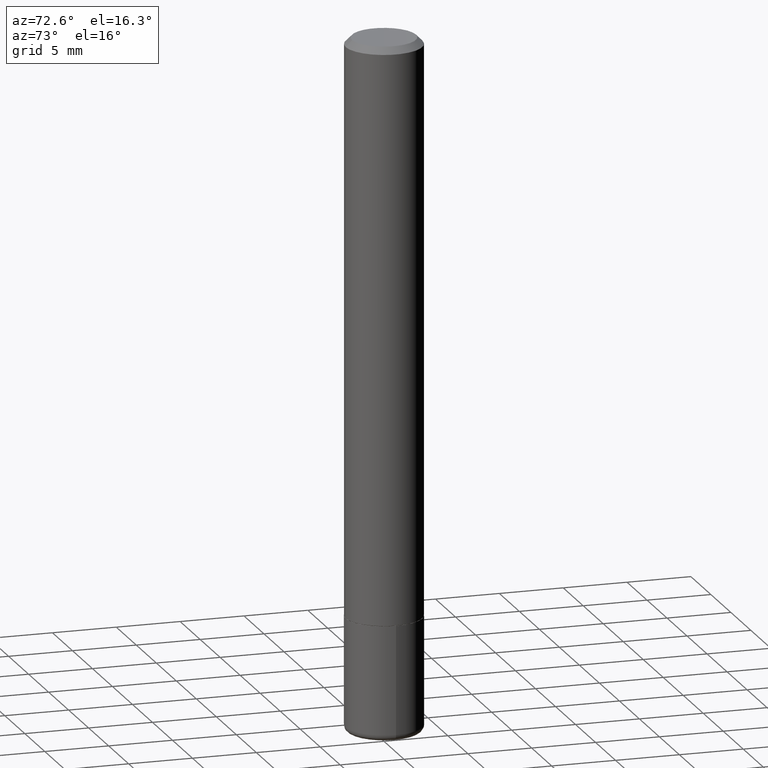
[diagram: clean part render]
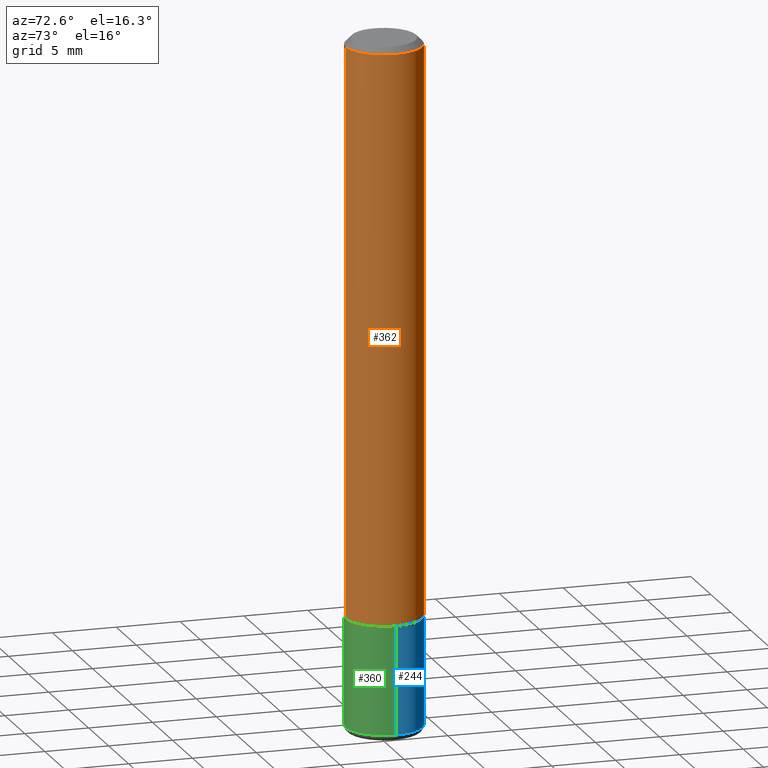
[diagram: same view with three faces highlighted in distinct colors, each labeled with its STEP entity id]
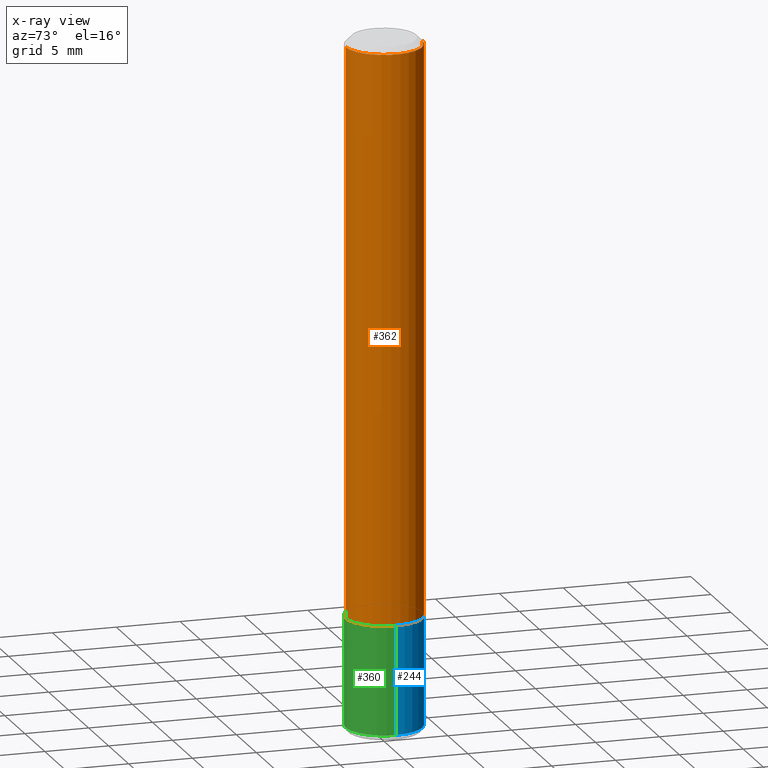
[diagram: x-ray of the same camera — body ghosted, the three highlighted faces saturated]
A machine part, auxiliary view with three faces highlighted in distinct colors.
The next image is the same camera in x-ray (body ghosted, the three faces saturated) — at least one of them is partly hidden behind the body in this view.
Their STEP definitions:

[orange] entity #362 — the highlighted cylindrical surface (partial cylindrical patch) has radius 2.9997 mm, axis along (-0, 0, 1).
#12 = CARTESIAN_POINT ( 'NONE',  ( -8.246878922347489529E-16, -0.1181000000000001354, 4.133363577972476627E-16 ) ) ;
#18 = DIRECTION ( 'NONE',  ( -6.982962677686265922E-15, -1.000000000000000000, 3.499884486005480105E-15 ) ) ;
#30 = ORIENTED_EDGE ( 'NONE', *, *, #162, .T. ) ;
#33 = DIRECTION ( 'NONE',  ( -2.439600919884167677E-29, 3.499884486005479711E-15, 1.000000000000000000 ) ) ;
#39 = AXIS2_PLACEMENT_3D ( 'NONE', #361, #163, #103 ) ;
#62 = EDGE_CURVE ( 'NONE', #219, #289, #125, .T. ) ;
#65 = AXIS2_PLACEMENT_3D ( 'NONE', #200, #269, #327 ) ;
#68 = CARTESIAN_POINT ( 'NONE',  ( 8.391509709327015671E-16, 0.1180999999999940708, -1.770700000000000385 ) ) ;
#87 = ORIENTED_EDGE ( 'NONE', *, *, #167, .F. ) ;
#103 = DIRECTION ( 'NONE',  ( -6.982962677686265922E-15, -1.000000000000000000, 3.505890868245044514E-15 ) ) ;
#117 = EDGE_CURVE ( 'NONE', #251, #180, #332, .T. ) ;
#125 = LINE ( 'NONE', #259, #412 ) ;
#153 = CARTESIAN_POINT ( 'NONE',  ( -8.246878922347066502E-16, -0.1181000000000064498, -1.770699999999999275 ) ) ;
#162 = EDGE_CURVE ( 'NONE', #251, #219, #381, .T. ) ;
#163 = DIRECTION ( 'NONE',  ( -2.439600919884167677E-29, 3.499884486005480105E-15, 1.000000000000000000 ) ) ;
#167 = EDGE_CURVE ( 'NONE', #180, #289, #343, .T. ) ;
#175 = CARTESIAN_POINT ( 'NONE',  ( 0.000000000000000000, 0.000000000000000000, 0.000000000000000000 ) ) ;
#176 = AXIS2_PLACEMENT_3D ( 'NONE', #175, #312, #18 ) ;
#179 = FACE_OUTER_BOUND ( 'NONE', #354, .T. ) ;
#180 = VERTEX_POINT ( 'NONE', #299 ) ;
#184 = ORIENTED_EDGE ( 'NONE', *, *, #117, .F. ) ;
#186 = VECTOR ( 'NONE', #33, 39.37007874015748143 ) ;
#190 = DIRECTION ( 'NONE',  ( -2.439600919884167677E-29, 3.499884486005479711E-15, 1.000000000000000000 ) ) ;
#196 = ORIENTED_EDGE ( 'NONE', *, *, #62, .T. ) ;
#200 = CARTESIAN_POINT ( 'NONE',  ( 4.319801348838895130E-29, -6.197245459369903172E-15, -1.770699999999999719 ) ) ;
#219 = VERTEX_POINT ( 'NONE', #68 ) ;
#251 = VERTEX_POINT ( 'NONE', #153 ) ;
#259 = CARTESIAN_POINT ( 'NONE',  ( 8.391509709326791832E-16, 0.1181000000000001354, -4.133363577972476627E-16 ) ) ;
#269 = DIRECTION ( 'NONE',  ( -2.439600919884167677E-29, 3.499884486005480105E-15, 1.000000000000000000 ) ) ;
#280 = CARTESIAN_POINT ( 'NONE',  ( 8.246878922347486570E-16, 0.1180999999999999689, -0.02000000000000047920 ) ) ;
#289 = VERTEX_POINT ( 'NONE', #280 ) ;
#299 = CARTESIAN_POINT ( 'NONE',  ( -8.102248135368175393E-16, -0.1181000000000001077, -0.01999999999999965000 ) ) ;
#312 = DIRECTION ( 'NONE',  ( -2.439600919884167677E-29, 3.499884486005480105E-15, 1.000000000000000000 ) ) ;
#327 = DIRECTION ( 'NONE',  ( -6.982962677686265133E-15, -1.000000000000000000, 4.626330217890359081E-15 ) ) ;
#332 = LINE ( 'NONE', #12, #186 ) ;
#340 = CYLINDRICAL_SURFACE ( 'NONE', #176, 0.1181000000000001354 ) ;
#343 = CIRCLE ( 'NONE', #39, 0.1181000000000000383 ) ;
#354 = EDGE_LOOP ( 'NONE', ( #30, #196, #87, #184 ) ) ;
#361 = CARTESIAN_POINT ( 'NONE',  ( 4.879201839768351154E-31, -6.999768972010982150E-17, -0.02000000000000006287 ) ) ;
#362 = ADVANCED_FACE ( 'NONE', ( #179 ), #340, .T. ) ;
#381 = CIRCLE ( 'NONE', #65, 0.1181000000000002603 ) ;
#412 = VECTOR ( 'NONE', #190, 39.37007874015748143 ) ;

[blue] entity #244 — the highlighted cylindrical surface (partial cylindrical patch) has radius 2.9997 mm, axis along (-0, 0, 1).
#4 = LINE ( 'NONE', #393, #113 ) ;
#8 = DIRECTION ( 'NONE',  ( -2.445468806185136877E-29, 3.491481338843145188E-15, 1.000000000000000000 ) ) ;
#25 = ORIENTED_EDGE ( 'NONE', *, *, #335, .F. ) ;
#34 = EDGE_CURVE ( 'NONE', #261, #195, #296, .T. ) ;
#41 = CYLINDRICAL_SURFACE ( 'NONE', #133, 0.1181000000000000383 ) ;
#50 = CARTESIAN_POINT ( 'NONE',  ( -0.1180999999999999689, -6.514956173072637249E-15, -2.106299999999999617 ) ) ;
#64 = VERTEX_POINT ( 'NONE', #384 ) ;
#72 = AXIS2_PLACEMENT_3D ( 'NONE', #387, #157, #294 ) ;
#77 = EDGE_CURVE ( 'NONE', #64, #372, #342, .T. ) ;
#80 = CARTESIAN_POINT ( 'NONE',  ( 0.000000000000000000, 0.000000000000000000, 0.000000000000000000 ) ) ;
#92 = EDGE_CURVE ( 'NONE', #372, #195, #4, .T. ) ;
#99 = CARTESIAN_POINT ( 'NONE',  ( 5.150890946467751892E-29, -7.354107144005315446E-15, -2.106299999999999617 ) ) ;
#113 = VECTOR ( 'NONE', #8, 39.37007874015748143 ) ;
#133 = AXIS2_PLACEMENT_3D ( 'NONE', #80, #211, #249 ) ;
#149 = CARTESIAN_POINT ( 'NONE',  ( 0.1181000000000000383, -7.010545380263147766E-15, -1.771699999999999831 ) ) ;
#157 = DIRECTION ( 'NONE',  ( -2.445468806185136597E-29, 3.491481338843145583E-15, 1.000000000000000000 ) ) ;
#165 = CARTESIAN_POINT ( 'NONE',  ( -0.1181000000000000383, -5.930831345084179278E-15, -1.771699999999999831 ) ) ;
#195 = VERTEX_POINT ( 'NONE', #165 ) ;
#198 = EDGE_LOOP ( 'NONE', ( #383, #315, #225, #25 ) ) ;
#206 = FACE_OUTER_BOUND ( 'NONE', #198, .T. ) ;
#211 = DIRECTION ( 'NONE',  ( -2.445468806185136597E-29, 3.491481338843145583E-15, 1.000000000000000000 ) ) ;
#225 = ORIENTED_EDGE ( 'NONE', *, *, #34, .F. ) ;
#226 = DIRECTION ( 'NONE',  ( -2.445468806185136597E-29, 3.491481338843145583E-15, 1.000000000000000000 ) ) ;
#244 = ADVANCED_FACE ( 'NONE', ( #206 ), #41, .T. ) ;
#248 = VECTOR ( 'NONE', #344, 39.37007874015748143 ) ;
#249 = DIRECTION ( 'NONE',  ( 1.000000000000000000, -6.982962677686266711E-15, 4.876176775795935793E-29 ) ) ;
#261 = VERTEX_POINT ( 'NONE', #149 ) ;
#277 = LINE ( 'NONE', #279, #248 ) ;
#279 = CARTESIAN_POINT ( 'NONE',  ( 0.1181000000000000383, -8.246878922347483612E-16, 5.758764772215001842E-30 ) ) ;
#294 = DIRECTION ( 'NONE',  ( 1.000000000000000000, -6.982962677686262766E-15, 0.000000000000000000 ) ) ;
#296 = CIRCLE ( 'NONE', #72, 0.1181000000000000383 ) ;
#315 = ORIENTED_EDGE ( 'NONE', *, *, #92, .T. ) ;
#320 = DIRECTION ( 'NONE',  ( 1.000000000000000000, -6.982962677686270655E-15, 0.000000000000000000 ) ) ;
#335 = EDGE_CURVE ( 'NONE', #64, #261, #277, .T. ) ;
#342 = CIRCLE ( 'NONE', #380, 0.1181000000000000383 ) ;
#344 = DIRECTION ( 'NONE',  ( -2.445468806185136877E-29, 3.491481338843145188E-15, 1.000000000000000000 ) ) ;
#372 = VERTEX_POINT ( 'NONE', #50 ) ;
#380 = AXIS2_PLACEMENT_3D ( 'NONE', #99, #226, #320 ) ;
#383 = ORIENTED_EDGE ( 'NONE', *, *, #77, .T. ) ;
#384 = CARTESIAN_POINT ( 'NONE',  ( 0.1180999999999999689, -8.178795036240065286E-15, -2.106299999999999617 ) ) ;
#387 = CARTESIAN_POINT ( 'NONE',  ( 4.332637083918205866E-29, -6.185857488028400292E-15, -1.771699999999999831 ) ) ;
#393 = CARTESIAN_POINT ( 'NONE',  ( -0.1181000000000000383, 8.391509709326785915E-16, -5.809262341591045886E-30 ) ) ;

[green] entity #360 — the highlighted cylindrical surface (partial cylindrical patch) has radius 2.9997 mm, axis along (-0, 0, 1).
#4 = LINE ( 'NONE', #393, #113 ) ;
#8 = DIRECTION ( 'NONE',  ( -2.445468806185136877E-29, 3.491481338843145188E-15, 1.000000000000000000 ) ) ;
#36 = CARTESIAN_POINT ( 'NONE',  ( 4.332637083918205866E-29, -6.185857488028400292E-15, -1.771699999999999831 ) ) ;
#47 = AXIS2_PLACEMENT_3D ( 'NONE', #36, #369, #304 ) ;
#50 = CARTESIAN_POINT ( 'NONE',  ( -0.1180999999999999689, -6.514956173072637249E-15, -2.106299999999999617 ) ) ;
#64 = VERTEX_POINT ( 'NONE', #384 ) ;
#70 = DIRECTION ( 'NONE',  ( -2.445468806185136597E-29, 3.491481338843145583E-15, 1.000000000000000000 ) ) ;
#92 = EDGE_CURVE ( 'NONE', #372, #195, #4, .T. ) ;
#113 = VECTOR ( 'NONE', #8, 39.37007874015748143 ) ;
#124 = EDGE_CURVE ( 'NONE', #195, #261, #213, .T. ) ;
#149 = CARTESIAN_POINT ( 'NONE',  ( 0.1181000000000000383, -7.010545380263147766E-15, -1.771699999999999831 ) ) ;
#160 = AXIS2_PLACEMENT_3D ( 'NONE', #243, #400, #370 ) ;
#165 = CARTESIAN_POINT ( 'NONE',  ( -0.1181000000000000383, -5.930831345084179278E-15, -1.771699999999999831 ) ) ;
#195 = VERTEX_POINT ( 'NONE', #165 ) ;
#213 = CIRCLE ( 'NONE', #47, 0.1181000000000000383 ) ;
#233 = EDGE_CURVE ( 'NONE', #372, #64, #321, .T. ) ;
#243 = CARTESIAN_POINT ( 'NONE',  ( 0.000000000000000000, 0.000000000000000000, 0.000000000000000000 ) ) ;
#247 = ORIENTED_EDGE ( 'NONE', *, *, #233, .T. ) ;
#248 = VECTOR ( 'NONE', #344, 39.37007874015748143 ) ;
#261 = VERTEX_POINT ( 'NONE', #149 ) ;
#276 = AXIS2_PLACEMENT_3D ( 'NONE', #336, #70, #365 ) ;
#277 = LINE ( 'NONE', #279, #248 ) ;
#279 = CARTESIAN_POINT ( 'NONE',  ( 0.1181000000000000383, -8.246878922347483612E-16, 5.758764772215001842E-30 ) ) ;
#304 = DIRECTION ( 'NONE',  ( 1.000000000000000000, -6.982962677686262766E-15, 0.000000000000000000 ) ) ;
#314 = FACE_OUTER_BOUND ( 'NONE', #319, .T. ) ;
#319 = EDGE_LOOP ( 'NONE', ( #345, #247, #351, #401 ) ) ;
#321 = CIRCLE ( 'NONE', #276, 0.1181000000000000383 ) ;
#335 = EDGE_CURVE ( 'NONE', #64, #261, #277, .T. ) ;
#336 = CARTESIAN_POINT ( 'NONE',  ( 5.150890946467751892E-29, -7.354107144005315446E-15, -2.106299999999999617 ) ) ;
#344 = DIRECTION ( 'NONE',  ( -2.445468806185136877E-29, 3.491481338843145188E-15, 1.000000000000000000 ) ) ;
#345 = ORIENTED_EDGE ( 'NONE', *, *, #92, .F. ) ;
#351 = ORIENTED_EDGE ( 'NONE', *, *, #335, .T. ) ;
#360 = ADVANCED_FACE ( 'NONE', ( #314 ), #399, .T. ) ;
#365 = DIRECTION ( 'NONE',  ( 1.000000000000000000, -6.982962677686270655E-15, 0.000000000000000000 ) ) ;
#369 = DIRECTION ( 'NONE',  ( -2.445468806185136597E-29, 3.491481338843145583E-15, 1.000000000000000000 ) ) ;
#370 = DIRECTION ( 'NONE',  ( 1.000000000000000000, -6.982962677686266711E-15, 4.876176775795935793E-29 ) ) ;
#372 = VERTEX_POINT ( 'NONE', #50 ) ;
#384 = CARTESIAN_POINT ( 'NONE',  ( 0.1180999999999999689, -8.178795036240065286E-15, -2.106299999999999617 ) ) ;
#393 = CARTESIAN_POINT ( 'NONE',  ( -0.1181000000000000383, 8.391509709326785915E-16, -5.809262341591045886E-30 ) ) ;
#399 = CYLINDRICAL_SURFACE ( 'NONE', #160, 0.1181000000000000383 ) ;
#400 = DIRECTION ( 'NONE',  ( -2.445468806185136597E-29, 3.491481338843145583E-15, 1.000000000000000000 ) ) ;
#401 = ORIENTED_EDGE ( 'NONE', *, *, #124, .F. ) ;